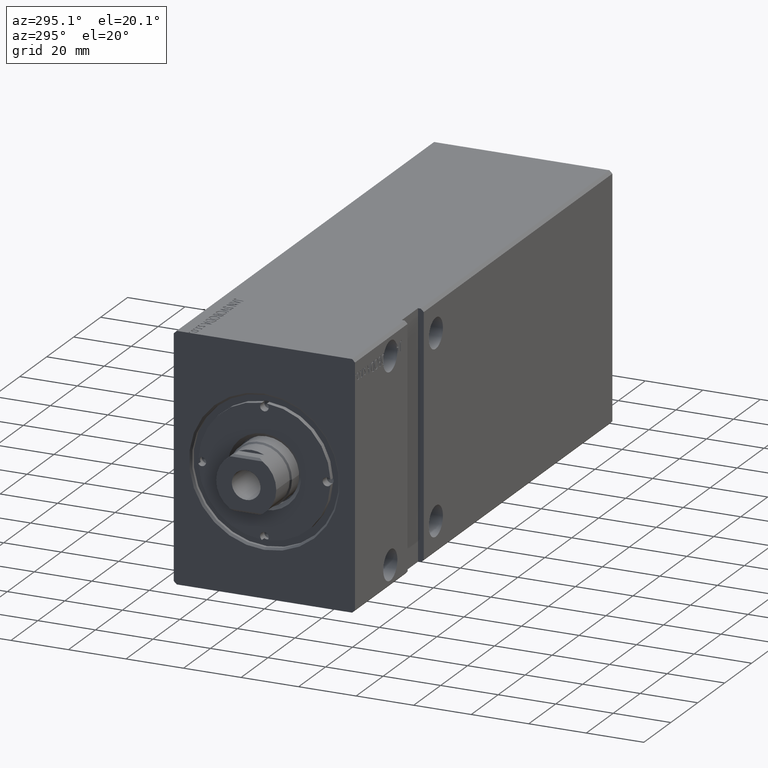
[diagram: clean part render]
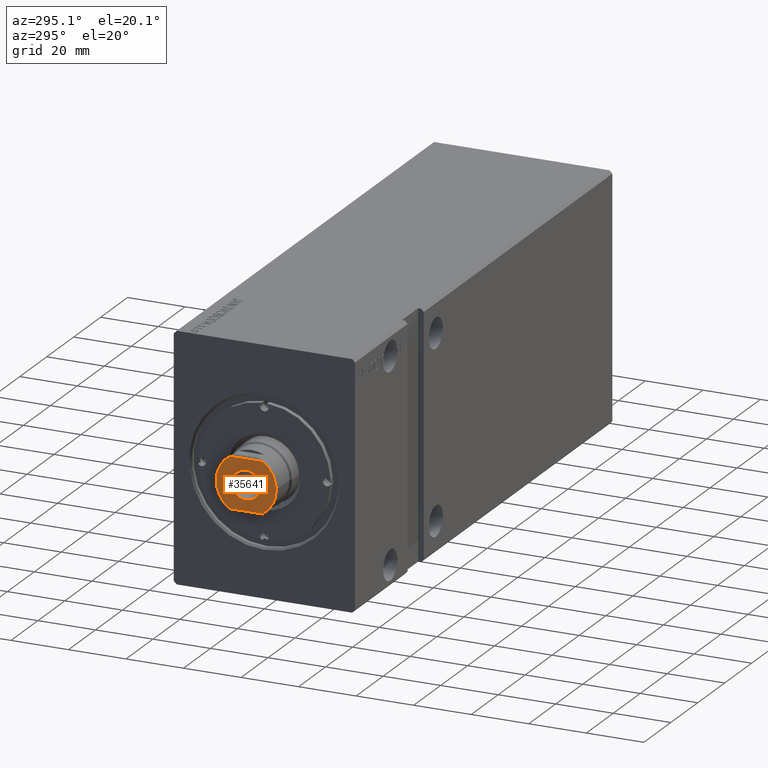
[diagram: same view with one face highlighted and labeled with its STEP entity id]
A machine part, auxiliary view. The second image highlights one B-rep face of the part: STEP entity #35641.
In plain terms, the highlighted planar face has unit normal (1, 0, 0).
Its self-contained STEP definition (entity closure, byte-faithful):
#94 = EDGE_CURVE ( 'NONE', #19559, #16714, #23413, .T. ) ;
#576 = ORIENTED_EDGE ( 'NONE', *, *, #5122, .T. ) ;
#1587 = AXIS2_PLACEMENT_3D ( 'NONE', #31860, #35477, #7826 ) ;
#1683 = CARTESIAN_POINT ( 'NONE',  ( 0.000000000000000000, -10.46000000000002927, 168.5000000000000000 ) ) ;
#2217 = ORIENTED_EDGE ( 'NONE', *, *, #31682, .T. ) ;
#2304 = VERTEX_POINT ( 'NONE', #26498 ) ;
#2759 = EDGE_CURVE ( 'NONE', #16714, #19857, #18761, .T. ) ;
#2966 = DIRECTION ( 'NONE',  ( 0.000000000000000000, 1.805224063316483446E-16, -1.000000000000000000 ) ) ;
#3204 = CARTESIAN_POINT ( 'NONE',  ( -8.790000000000011582, 10.45999999999996888, 168.5000000000000000 ) ) ;
#3472 = ORIENTED_EDGE ( 'NONE', *, *, #2759, .T. ) ;
#4643 = CIRCLE ( 'NONE', #32365, 5.000000000000000000 ) ;
#5122 = EDGE_CURVE ( 'NONE', #35837, #37730, #6695, .T. ) ;
#5189 = PLANE ( 'NONE',  #15524 ) ;
#5392 = FACE_OUTER_BOUND ( 'NONE', #8002, .T. ) ;
#5727 = ORIENTED_EDGE ( 'NONE', *, *, #14176, .F. ) ;
#5977 = AXIS2_PLACEMENT_3D ( 'NONE', #36829, #9176, #34006 ) ;
#6695 = CIRCLE ( 'NONE', #1587, 10.46000000000000085 ) ;
#6915 = ORIENTED_EDGE ( 'NONE', *, *, #94, .T. ) ;
#7680 = AXIS2_PLACEMENT_3D ( 'NONE', #36251, #17684, #38891 ) ;
#7826 = DIRECTION ( 'NONE',  ( 0.000000000000000000, -1.000000000000000000, 0.000000000000000000 ) ) ;
#8002 = EDGE_LOOP ( 'NONE', ( #34040, #576, #16294, #2217, #6915, #3472 ) ) ;
#8824 = CARTESIAN_POINT ( 'NONE',  ( -5.000000000000000000, -2.980570206730907590E-14, 168.5000000000000000 ) ) ;
#8919 = CIRCLE ( 'NONE', #16024, 10.46000000000000085 ) ;
#9174 = DIRECTION ( 'NONE',  ( 0.000000000000000000, -1.000000000000000000, 0.000000000000000000 ) ) ;
#9176 = DIRECTION ( 'NONE',  ( -0.000000000000000000, -1.805224063316483446E-16, 1.000000000000000000 ) ) ;
#9450 = VERTEX_POINT ( 'NONE', #36168 ) ;
#10054 = EDGE_LOOP ( 'NONE', ( #35041, #5727 ) ) ;
#11726 = VECTOR ( 'NONE', #23569, 1000.000000000000000 ) ;
#12223 = CARTESIAN_POINT ( 'NONE',  ( 8.790000000000011582, -5.669876541865807695, 168.5000000000000000 ) ) ;
#12264 = CARTESIAN_POINT ( 'NONE',  ( 0.000000000000000000, 10.45999999999996888, 168.5000000000000000 ) ) ;
#14176 = EDGE_CURVE ( 'NONE', #24172, #9450, #4643, .T. ) ;
#15240 = DIRECTION ( 'NONE',  ( 1.000000000000000000, 0.000000000000000000, 0.000000000000000000 ) ) ;
#15524 = AXIS2_PLACEMENT_3D ( 'NONE', #12264, #2966, #30421 ) ;
#16024 = AXIS2_PLACEMENT_3D ( 'NONE', #18275, #18066, #9174 ) ;
#16294 = ORIENTED_EDGE ( 'NONE', *, *, #39856, .T. ) ;
#16714 = VERTEX_POINT ( 'NONE', #19058 ) ;
#16777 = DIRECTION ( 'NONE',  ( 0.000000000000000000, 0.000000000000000000, 1.000000000000000000 ) ) ;
#17684 = DIRECTION ( 'NONE',  ( -0.000000000000000000, -1.805224063316483446E-16, 1.000000000000000000 ) ) ;
#18066 = DIRECTION ( 'NONE',  ( -0.000000000000000000, -1.805224063316483446E-16, 1.000000000000000000 ) ) ;
#18275 = CARTESIAN_POINT ( 'NONE',  ( 0.000000000000000000, -3.041802546688275165E-14, 168.5000000000000000 ) ) ;
#18761 = LINE ( 'NONE', #3204, #38904 ) ;
#19058 = CARTESIAN_POINT ( 'NONE',  ( -8.790000000000011582, 5.669876541865746411, 168.5000000000000000 ) ) ;
#19559 = VERTEX_POINT ( 'NONE', #36003 ) ;
#19857 = VERTEX_POINT ( 'NONE', #35761 ) ;
#20408 = CARTESIAN_POINT ( 'NONE',  ( 0.000000000000000000, -3.041802546688275165E-14, 168.5000000000000000 ) ) ;
#22535 = CIRCLE ( 'NONE', #7680, 10.46000000000000085 ) ;
#22622 = CIRCLE ( 'NONE', #27765, 5.000000000000000000 ) ;
#23413 = CIRCLE ( 'NONE', #5977, 10.46000000000000085 ) ;
#23569 = DIRECTION ( 'NONE',  ( 0.000000000000000000, 1.000000000000000000, 1.805224063316483446E-16 ) ) ;
#23960 = LINE ( 'NONE', #36260, #11726 ) ;
#24172 = VERTEX_POINT ( 'NONE', #8824 ) ;
#24569 = EDGE_CURVE ( 'NONE', #19857, #35837, #8919, .T. ) ;
#26498 = CARTESIAN_POINT ( 'NONE',  ( 8.790000000000011582, 5.669876541865746411, 168.5000000000000000 ) ) ;
#27765 = AXIS2_PLACEMENT_3D ( 'NONE', #20408, #16777, #32713 ) ;
#30421 = DIRECTION ( 'NONE',  ( 0.000000000000000000, 1.000000000000000000, 1.805224063316483446E-16 ) ) ;
#30573 = DIRECTION ( 'NONE',  ( 0.000000000000000000, 0.000000000000000000, 1.000000000000000000 ) ) ;
#31682 = EDGE_CURVE ( 'NONE', #2304, #19559, #22535, .T. ) ;
#31860 = CARTESIAN_POINT ( 'NONE',  ( 0.000000000000000000, -3.041802546688275165E-14, 168.5000000000000000 ) ) ;
#32365 = AXIS2_PLACEMENT_3D ( 'NONE', #36623, #30573, #15240 ) ;
#32713 = DIRECTION ( 'NONE',  ( 1.000000000000000000, 0.000000000000000000, 0.000000000000000000 ) ) ;
#34006 = DIRECTION ( 'NONE',  ( 0.000000000000000000, -1.000000000000000000, 0.000000000000000000 ) ) ;
#34040 = ORIENTED_EDGE ( 'NONE', *, *, #24569, .T. ) ;
#35041 = ORIENTED_EDGE ( 'NONE', *, *, #36002, .F. ) ;
#35477 = DIRECTION ( 'NONE',  ( -0.000000000000000000, -1.805224063316483446E-16, 1.000000000000000000 ) ) ;
#35641 = ADVANCED_FACE ( 'NONE', ( #39511, #5392 ), #5189, .F. ) ;
#35761 = CARTESIAN_POINT ( 'NONE',  ( -8.790000000000011582, -5.669876541865807695, 168.5000000000000000 ) ) ;
#35837 = VERTEX_POINT ( 'NONE', #1683 ) ;
#36002 = EDGE_CURVE ( 'NONE', #9450, #24172, #22622, .T. ) ;
#36003 = CARTESIAN_POINT ( 'NONE',  ( 1.280980551908131330E-15, 10.45999999999996888, 168.5000000000000000 ) ) ;
#36168 = CARTESIAN_POINT ( 'NONE',  ( 5.000000000000000000, -3.041802546688275165E-14, 168.5000000000000000 ) ) ;
#36251 = CARTESIAN_POINT ( 'NONE',  ( 0.000000000000000000, -3.041802546688275165E-14, 168.5000000000000000 ) ) ;
#36260 = CARTESIAN_POINT ( 'NONE',  ( 8.790000000000011582, 10.45999999999996888, 168.5000000000000000 ) ) ;
#36623 = CARTESIAN_POINT ( 'NONE',  ( 0.000000000000000000, -3.041802546688275165E-14, 168.5000000000000000 ) ) ;
#36829 = CARTESIAN_POINT ( 'NONE',  ( 0.000000000000000000, -3.041802546688275165E-14, 168.5000000000000000 ) ) ;
#37524 = DIRECTION ( 'NONE',  ( 0.000000000000000000, -1.000000000000000000, -1.805224063316483446E-16 ) ) ;
#37730 = VERTEX_POINT ( 'NONE', #12223 ) ;
#38891 = DIRECTION ( 'NONE',  ( 0.000000000000000000, -1.000000000000000000, 0.000000000000000000 ) ) ;
#38904 = VECTOR ( 'NONE', #37524, 1000.000000000000000 ) ;
#39511 = FACE_BOUND ( 'NONE', #10054, .T. ) ;
#39856 = EDGE_CURVE ( 'NONE', #37730, #2304, #23960, .T. ) ;